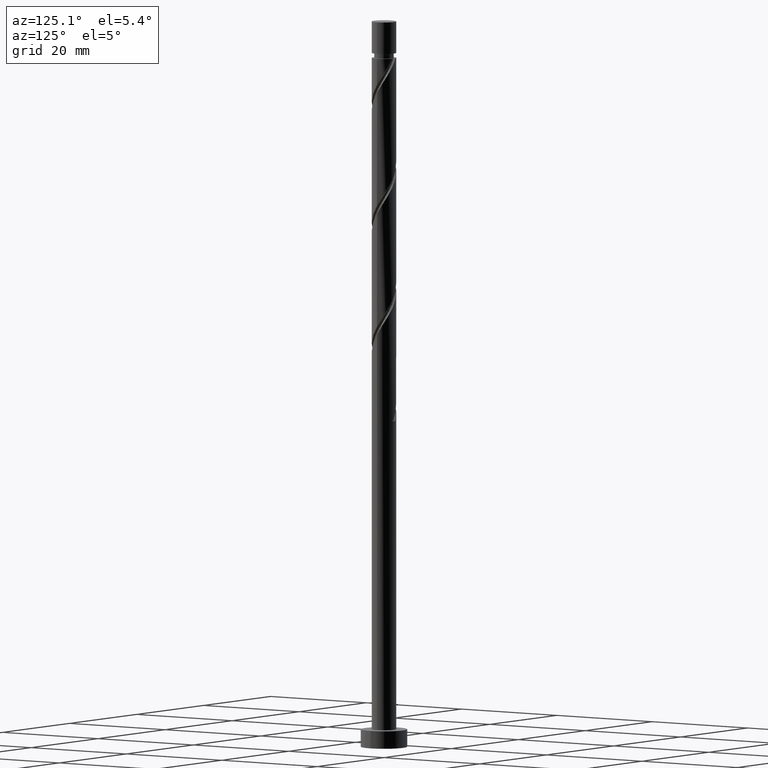
[diagram: clean part render]
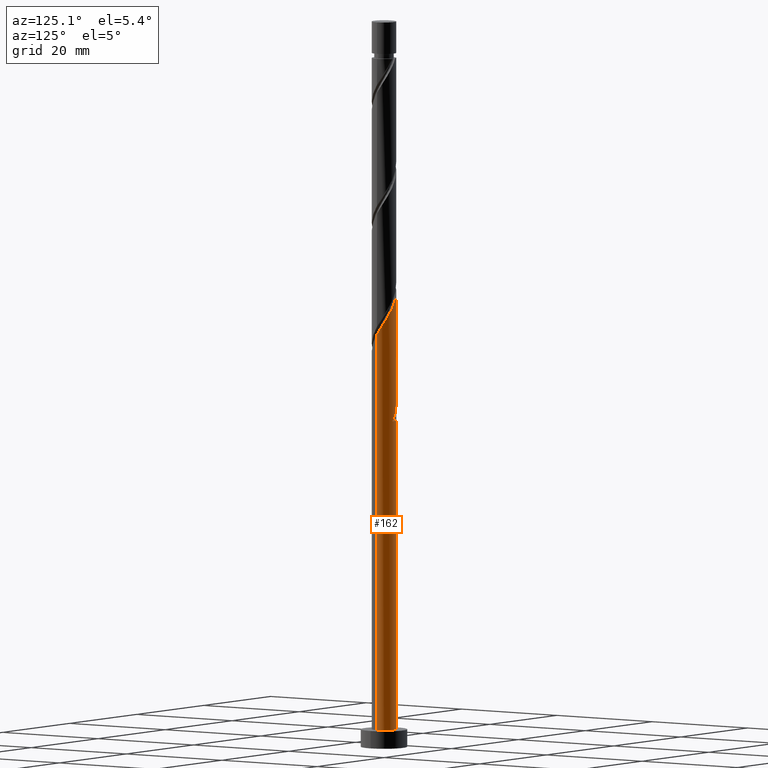
[diagram: same view with one face highlighted and labeled with its STEP entity id]
A machine part, auxiliary view. The second image highlights one B-rep face of the part: STEP entity #162.
In plain terms, the highlighted cylindrical surface (edge-blend (fillet) strip) has radius 2.1 mm, axis along (-0, -0, -1).
Its self-contained STEP definition (entity closure, byte-faithful):
#25 =( BOUNDED_CURVE ( )  B_SPLINE_CURVE ( 2, ( #1214, #1195, #482, #1088, #1551, #218, #460, #848, #108, #1432, #226 ),
 .UNSPECIFIED., .F., .T. ) 
 B_SPLINE_CURVE_WITH_KNOTS ( ( 3, 2, 2, 2, 2, 3 ),
 ( 0.000000000000000000, 0.01249999999999995559, 0.02500000000000002220, 0.03749999999999997780, 0.05000000000000004441, 0.05453220231385520061 ),
 .UNSPECIFIED. ) 
 CURVE ( )  GEOMETRIC_REPRESENTATION_ITEM ( )  RATIONAL_B_SPLINE_CURVE ( ( 0.9090909090909184975, 0.8978984914501344505, 0.9090909090909184975, 0.8978984914501344505, 0.9090909090909184975, 0.8978984914501344505, 0.9090909090909184975, 0.8978984914501344505, 0.9090909090909184975, 0.9050328050005829184, 0.9039174447099408427 ) ) 
 REPRESENTATION_ITEM ( '' )  );
#30 = ORIENTED_EDGE ( 'NONE', *, *, #209, .F. ) ;
#36 = CARTESIAN_POINT ( 'NONE',  ( 1.419324618889670209, 1.547745982457620295, 73.94254614362536415 ) ) ;
#61 = VERTEX_POINT ( 'NONE', #1168 ) ;
#84 = DIRECTION ( 'NONE',  ( 0.000000000000000000, 0.000000000000000000, 1.000000000000000000 ) ) ;
#92 = ORIENTED_EDGE ( 'NONE', *, *, #121, .F. ) ;
#108 = CARTESIAN_POINT ( 'NONE',  ( -2.086410881982748045, 0.2385154744329746335, 60.40087947695869275 ) ) ;
#114 = VERTEX_POINT ( 'NONE', #714 ) ;
#121 = EDGE_CURVE ( 'NONE', #562, #1528, #25, .T. ) ;
#151 = CARTESIAN_POINT ( 'NONE',  ( -2.100000000000003197, -2.413889548096119256E-15, 81.61107703548840675 ) ) ;
#162 = ADVANCED_FACE ( 'NONE', ( #1022 ), #302, .T. ) ;
#163 = CARTESIAN_POINT ( 'NONE',  ( -1.828137739088107505, 1.033398474414309876, 60.40087947695869275 ) ) ;
#165 = CARTESIAN_POINT ( 'NONE',  ( 1.174185737693570930, 1.772544917859297131, 74.46337947695870696 ) ) ;
#172 = CARTESIAN_POINT ( 'NONE',  ( 0.2385154744329750776, 2.086410881982748489, 76.02587947695867854 ) ) ;
#180 = CARTESIAN_POINT ( 'NONE',  ( 1.991811978090451074, 0.7438499017726770690, 72.38004614362533573 ) ) ;
#182 = ORIENTED_EDGE ( 'NONE', *, *, #1261, .F. ) ;
#187 = AXIS2_PLACEMENT_3D ( 'NONE', #954, #498, #785 ) ;
#209 = EDGE_CURVE ( 'NONE', #1528, #574, #1474, .T. ) ;
#218 = CARTESIAN_POINT ( 'NONE',  ( -1.772544917859297353, 1.174185737693570708, 58.83837947695869985 ) ) ;
#226 = CARTESIAN_POINT ( 'NONE',  ( -2.100000000000003197, -2.413889548096119256E-15, 60.77774370215509236 ) ) ;
#232 = DIRECTION ( 'NONE',  ( -0.000000000000000000, -0.000000000000000000, -1.000000000000000000 ) ) ;
#271 = CARTESIAN_POINT ( 'NONE',  ( -1.991811978090447521, 0.7438499017726768470, 60.92171281029204266 ) ) ;
#274 = CARTESIAN_POINT ( 'NONE',  ( -1.322947047055944791, 1.664463500085770375, 78.63004614362534994 ) ) ;
#283 = CARTESIAN_POINT ( 'NONE',  ( -2.100000000000000977, 0.2110579412044306380, 61.77304400968780129 ) ) ;
#295 = CARTESIAN_POINT ( 'NONE',  ( -0.7438499017726775131, 1.991811978090451074, 77.58837947695867854 ) ) ;
#302 = CYLINDRICAL_SURFACE ( 'NONE', #1462, 2.100000000000000089 ) ;
#331 = CARTESIAN_POINT ( 'NONE',  ( -2.100000000000003197, -2.413889548096119256E-15, 60.77774370215509236 ) ) ;
#397 = CARTESIAN_POINT ( 'NONE',  ( -2.100000000000000089, -2.863682631592311736E-15, 62.10734858509563594 ) ) ;
#409 = CARTESIAN_POINT ( 'NONE',  ( 0.4178947235847814135, 2.057999999999999829, 56.23421281029202135 ) ) ;
#411 = CARTESIAN_POINT ( 'NONE',  ( 2.100000000000004530, 0.2110579412044278902, 71.52871494422959131 ) ) ;
#460 = CARTESIAN_POINT ( 'NONE',  ( -1.910589329957617988, 0.8715781159782025611, 59.35921281029201424 ) ) ;
#482 = CARTESIAN_POINT ( 'NONE',  ( -1.033398474414310764, 1.828137739088110614, 57.27587947695869275 ) ) ;
#498 = DIRECTION ( 'NONE',  ( -3.668437989309016135E-30, -2.478176394252579129E-14, -1.000000000000000000 ) ) ;
#517 = CARTESIAN_POINT ( 'NONE',  ( 0.4178947235847814135, 2.057999999999999829, 56.23421281029202135 ) ) ;
#524 = CARTESIAN_POINT ( 'NONE',  ( -0.8715781159782010068, 1.910589329957615545, 58.31754614362534994 ) ) ;
#532 = CARTESIAN_POINT ( 'NONE',  ( 1.828137739088110614, 1.033398474414310542, 72.90087947695867854 ) ) ;
#540 = CARTESIAN_POINT ( 'NONE',  ( 0.8715781159782027832, 1.910589329957617988, 74.98421281029202135 ) ) ;
#547 = CARTESIAN_POINT ( 'NONE',  ( -2.100000000000000089, 0.000000000000000000, 3.000000000000000000 ) ) ;
#550 = DIRECTION ( 'NONE',  ( -1.000000000000000000, 0.000000000000000000, 0.000000000000000000 ) ) ;
#562 = VERTEX_POINT ( 'NONE', #1521 ) ;
#564 =( BOUNDED_CURVE ( )  B_SPLINE_CURVE ( 2, ( #1010, #411, #904, #180, #532, #1156, #36, #165, #540, #1373, #172, #677, #1508, #295, #1255, #274, #794, #1144, #1123, #897, #1267, #1249, #151 ),
 .UNSPECIFIED., .F., .T. ) 
 B_SPLINE_CURVE_WITH_KNOTS ( ( 3, 2, 2, 2, 2, 2, 2, 2, 2, 2, 2, 3 ),
 ( 0.1795322023138549439, 0.1875000000000000000, 0.1999999999999999556, 0.2125000000000000222, 0.2249999999999999778, 0.2375000000000000444, 0.2500000000000000000, 0.2624999999999999556, 0.2750000000000000222, 0.2874999999999999778, 0.3000000000000000444, 0.3045322023138551382 ),
 .UNSPECIFIED. ) 
 CURVE ( )  GEOMETRIC_REPRESENTATION_ITEM ( )  RATIONAL_B_SPLINE_CURVE ( ( 0.9039174447099407317, 0.9019565955404698077, 0.9090909090909184975, 0.8978984914501344505, 0.9090909090909184975, 0.8978984914501344505, 0.9090909090909184975, 0.8978984914501344505, 0.9090909090909184975, 0.8978984914501344505, 0.9090909090909184975, 0.8978984914501344505, 0.9090909090909184975, 0.8978984914501344505, 0.9090909090909184975, 0.8978984914501344505, 0.9090909090909184975, 0.8978984914501344505, 0.9090909090909184975, 0.8978984914501344505, 0.9090909090909184975, 0.9050328050005829184, 0.9039174447099407317 ) ) 
 REPRESENTATION_ITEM ( '' )  );
#574 = VERTEX_POINT ( 'NONE', #547 ) ;
#588 = ORIENTED_EDGE ( 'NONE', *, *, #816, .F. ) ;
#601 = EDGE_CURVE ( 'NONE', #61, #574, #777, .T. ) ;
#606 = VERTEX_POINT ( 'NONE', #1427 ) ;
#637 = CARTESIAN_POINT ( 'NONE',  ( -0.5689704942628327489, 2.048633742055936846, 57.79671281029204266 ) ) ;
#655 = ORIENTED_EDGE ( 'NONE', *, *, #1377, .F. ) ;
#670 = DIRECTION ( 'NONE',  ( -0.000000000000000000, -0.000000000000000000, -1.000000000000000000 ) ) ;
#675 = DIRECTION ( 'NONE',  ( -0.000000000000000000, -0.000000000000000000, -1.000000000000000000 ) ) ;
#677 = CARTESIAN_POINT ( 'NONE',  ( -0.09193954539688459215, 2.124188021909555690, 76.54671281029203556 ) ) ;
#714 = CARTESIAN_POINT ( 'NONE',  ( -2.100000000000000089, -2.863682631592311736E-15, 62.10734858509563594 ) ) ;
#764 = LINE ( 'NONE', #1494, #1438 ) ;
#774 = CARTESIAN_POINT ( 'NONE',  ( -2.057999999999999829, 0.4178947235847810804, 61.44254614362535705 ) ) ;
#777 = CIRCLE ( 'NONE', #1284, 2.100000000000000089 ) ;
#782 = EDGE_CURVE ( 'NONE', #562, #1424, #830, .T. ) ;
#785 = DIRECTION ( 'NONE',  ( 0.000000000000000000, 1.000000000000000000, -2.312964634635742582E-14 ) ) ;
#786 = VERTEX_POINT ( 'NONE', #1488 ) ;
#794 = CARTESIAN_POINT ( 'NONE',  ( -1.547745982457620739, 1.419324618889670209, 79.15087947695866433 ) ) ;
#816 = EDGE_CURVE ( 'NONE', #786, #606, #564, .T. ) ;
#830 = CIRCLE ( 'NONE', #187, 2.100000000000000089 ) ;
#844 = LINE ( 'NONE', #1327, #1315 ) ;
#848 = CARTESIAN_POINT ( 'NONE',  ( -2.048633742055939955, 0.5689704942628340811, 59.88004614362537126 ) ) ;
#855 = EDGE_CURVE ( 'NONE', #786, #61, #764, .T. ) ;
#897 = CARTESIAN_POINT ( 'NONE',  ( -2.048633742055939955, 0.5689704942628340811, 80.71337947695870696 ) ) ;
#904 = CARTESIAN_POINT ( 'NONE',  ( 2.058000000000002938, 0.4178947235847808583, 71.85921281029200713 ) ) ;
#954 = CARTESIAN_POINT ( 'NONE',  ( 0.000000000000000000, 0.000000000000000000, 56.23421281029207819 ) ) ;
#983 = DIRECTION ( 'NONE',  ( -0.000000000000000000, -0.000000000000000000, -1.000000000000000000 ) ) ;
#984 =( BOUNDED_CURVE ( )  B_SPLINE_CURVE ( 2, ( #397, #283, #774, #271, #163, #1120, #1241, #1485, #524, #637, #1252, #1116, #517 ),
 .UNSPECIFIED., .F., .T. ) 
 B_SPLINE_CURVE_WITH_KNOTS ( ( 3, 2, 2, 2, 2, 2, 3 ),
 ( 0.9295322023138550271, 0.9375000000000000000, 0.9499999999999999556, 0.9625000000000000222, 0.9749999999999999778, 0.9875000000000000444, 1.000000000000000000 ),
 .UNSPECIFIED. ) 
 CURVE ( )  GEOMETRIC_REPRESENTATION_ITEM ( )  RATIONAL_B_SPLINE_CURVE ( ( 0.9039174447099341814, 0.9019565955404631463, 0.9090909090909118362, 0.8978984914501279002, 0.9090909090909118362, 0.8978984914501279002, 0.9090909090909118362, 0.8978984914501279002, 0.9090909090909118362, 0.8978984914501279002, 0.9090909090909118362, 0.8978984914501279002, 0.9090909090909118362 ) ) 
 REPRESENTATION_ITEM ( '' )  );
#1010 = CARTESIAN_POINT ( 'NONE',  ( 2.100000000000003197, 2.114027492432004742E-15, 71.19441036882174956 ) ) ;
#1022 = FACE_OUTER_BOUND ( 'NONE', #1425, .T. ) ;
#1031 = DIRECTION ( 'NONE',  ( 1.000000000000000000, 0.000000000000000000, 0.000000000000000000 ) ) ;
#1088 = CARTESIAN_POINT ( 'NONE',  ( -1.322947047055944791, 1.664463500085770375, 57.79671281029202845 ) ) ;
#1103 = VECTOR ( 'NONE', #983, 1000.000000000000000 ) ;
#1109 = ORIENTED_EDGE ( 'NONE', *, *, #601, .T. ) ;
#1116 = CARTESIAN_POINT ( 'NONE',  ( 0.09193954539688536931, 2.124188021909552582, 56.75504614362535705 ) ) ;
#1120 = CARTESIAN_POINT ( 'NONE',  ( -1.664463500085766823, 1.322947047055942793, 59.88004614362537126 ) ) ;
#1123 = CARTESIAN_POINT ( 'NONE',  ( -1.910589329957617988, 0.8715781159782025611, 80.19254614362536415 ) ) ;
#1144 = CARTESIAN_POINT ( 'NONE',  ( -1.772544917859297353, 1.174185737693570708, 79.67171281029200713 ) ) ;
#1156 = CARTESIAN_POINT ( 'NONE',  ( 1.664463500085770598, 1.322947047055944569, 73.42171281029203556 ) ) ;
#1168 = CARTESIAN_POINT ( 'NONE',  ( 2.100000000000000089, 2.571758278209441464E-16, 3.000000000000000000 ) ) ;
#1195 = CARTESIAN_POINT ( 'NONE',  ( -0.7438499017726775131, 1.991811978090451074, 56.75504614362534284 ) ) ;
#1214 = CARTESIAN_POINT ( 'NONE',  ( -0.4178947235847808028, 2.058000000000002938, 56.23421281029202135 ) ) ;
#1241 = CARTESIAN_POINT ( 'NONE',  ( -1.419324618889668210, 1.547745982457618741, 59.35921281029202845 ) ) ;
#1249 = CARTESIAN_POINT ( 'NONE',  ( -2.100000000000003642, 0.1196448486375109033, 81.42156594628114874 ) ) ;
#1252 = CARTESIAN_POINT ( 'NONE',  ( -0.2385154744329738841, 2.086410881982744492, 57.27587947695869275 ) ) ;
#1255 = CARTESIAN_POINT ( 'NONE',  ( -1.033398474414310764, 1.828137739088110614, 78.10921281029200713 ) ) ;
#1261 = EDGE_CURVE ( 'NONE', #606, #114, #844, .T. ) ;
#1267 = CARTESIAN_POINT ( 'NONE',  ( -2.086410881982748045, 0.2385154744329746335, 81.23421281029200713 ) ) ;
#1272 = CARTESIAN_POINT ( 'NONE',  ( 0.000000000000000000, 0.000000000000000000, 3.000000000000000000 ) ) ;
#1275 = CARTESIAN_POINT ( 'NONE',  ( 0.000000000000000000, 0.000000000000000000, 125.0000000000000000 ) ) ;
#1284 = AXIS2_PLACEMENT_3D ( 'NONE', #1272, #84, #1031 ) ;
#1315 = VECTOR ( 'NONE', #232, 1000.000000000000000 ) ;
#1327 = CARTESIAN_POINT ( 'NONE',  ( -2.100000000000000089, 0.000000000000000000, 125.0000000000000000 ) ) ;
#1365 = CARTESIAN_POINT ( 'NONE',  ( -2.100000000000000089, 0.000000000000000000, 125.0000000000000000 ) ) ;
#1373 = CARTESIAN_POINT ( 'NONE',  ( 0.5689704942628345252, 2.048633742055939955, 75.50504614362533573 ) ) ;
#1377 = EDGE_CURVE ( 'NONE', #114, #1424, #984, .T. ) ;
#1424 = VERTEX_POINT ( 'NONE', #409 ) ;
#1425 = EDGE_LOOP ( 'NONE', ( #588, #1509, #1109, #30, #92, #1567, #655, #182 ) ) ;
#1427 = CARTESIAN_POINT ( 'NONE',  ( -2.100000000000003197, -2.413889548096119256E-15, 81.61107703548840675 ) ) ;
#1432 = CARTESIAN_POINT ( 'NONE',  ( -2.100000000000003642, 0.1196448486375092796, 60.58823261294782014 ) ) ;
#1438 = VECTOR ( 'NONE', #670, 1000.000000000000000 ) ;
#1462 = AXIS2_PLACEMENT_3D ( 'NONE', #1275, #675, #550 ) ;
#1474 = LINE ( 'NONE', #1365, #1103 ) ;
#1485 = CARTESIAN_POINT ( 'NONE',  ( -1.174185737693568932, 1.772544917859294467, 58.83837947695869275 ) ) ;
#1488 = CARTESIAN_POINT ( 'NONE',  ( 2.100000000000003197, 2.114027492432004742E-15, 71.19441036882174956 ) ) ;
#1494 = CARTESIAN_POINT ( 'NONE',  ( 2.100000000000000089, 2.571758278209441464E-16, 125.0000000000000000 ) ) ;
#1508 = CARTESIAN_POINT ( 'NONE',  ( -0.4178947235847808028, 2.058000000000002938, 77.06754614362532152 ) ) ;
#1509 = ORIENTED_EDGE ( 'NONE', *, *, #855, .T. ) ;
#1521 = CARTESIAN_POINT ( 'NONE',  ( -0.4178947235847808028, 2.058000000000002938, 56.23421281029202135 ) ) ;
#1528 = VERTEX_POINT ( 'NONE', #331 ) ;
#1551 = CARTESIAN_POINT ( 'NONE',  ( -1.547745982457620739, 1.419324618889670209, 58.31754614362534994 ) ) ;
#1567 = ORIENTED_EDGE ( 'NONE', *, *, #782, .T. ) ;